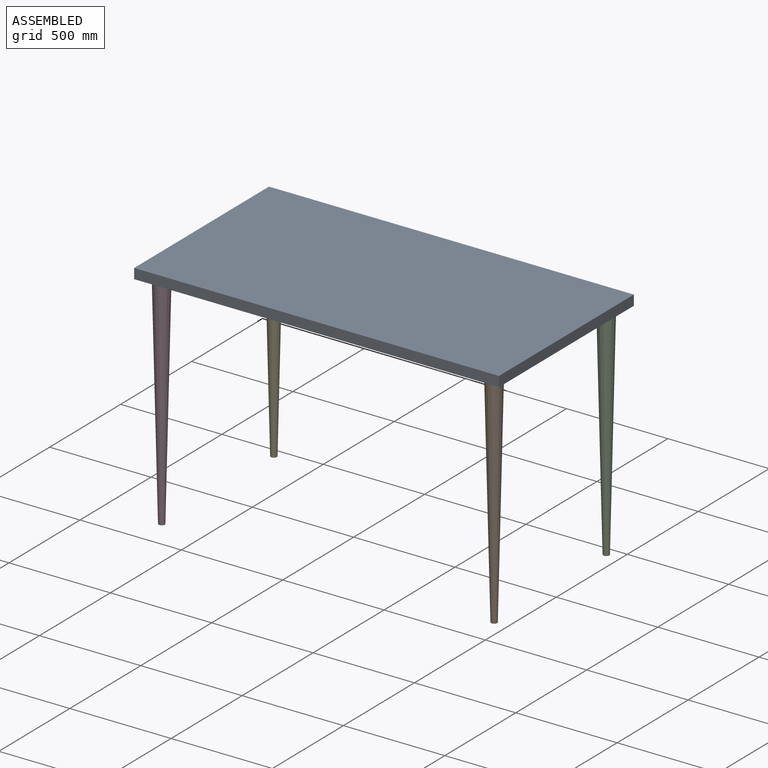
[diagram: assembled view]
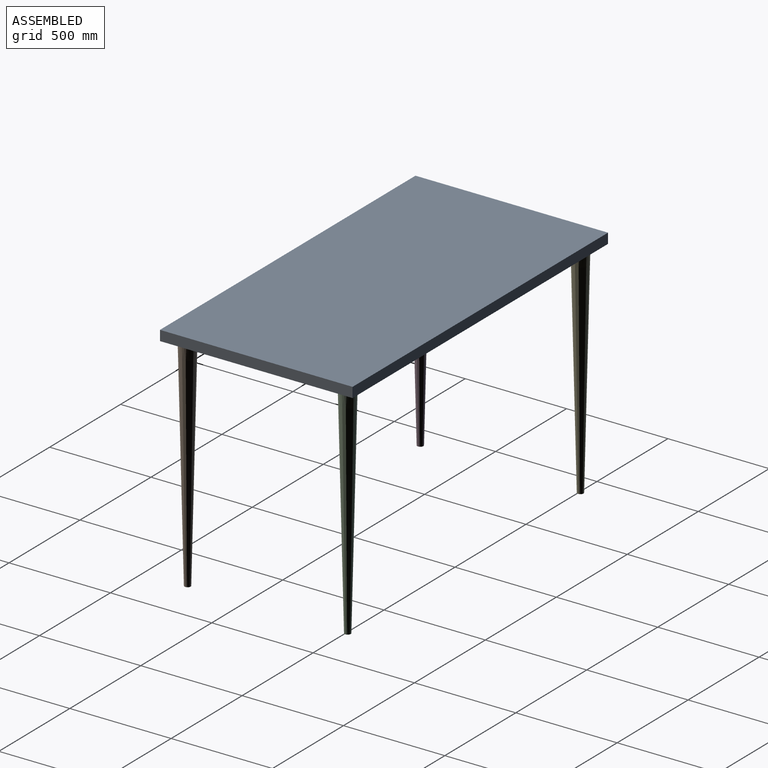
[diagram: assembled view, second angle]
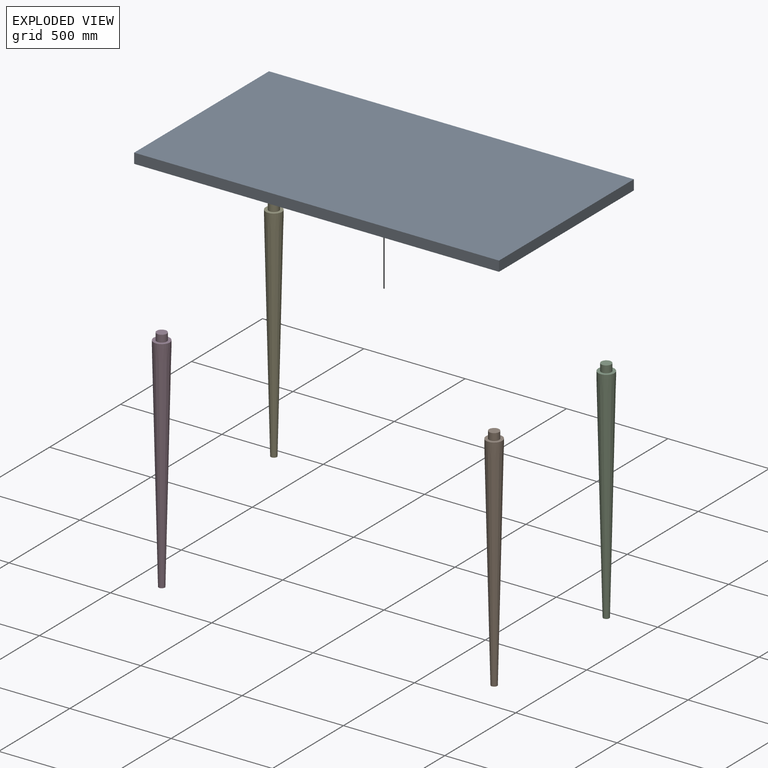
[diagram: exploded view]
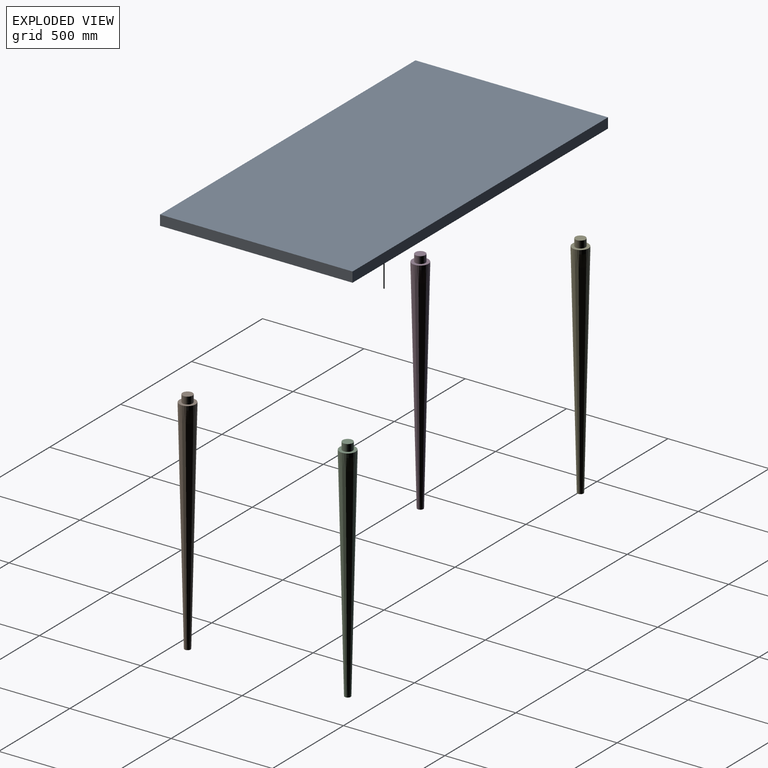
[diagram: exploded view, second angle]
ASSEMBLY  parts=5 mates=4
PART A: 14 faces, bbox 1800x950x50 mm
  f0: plane 1800x950mm, normal (0,0,-1), area 1702146mm2, adj f1,f2,f3,f4,f6,f8,f10,f12
  f1: plane 1800x50mm, normal (0,-1,0), area 90000mm2, adj f0,f2,f4,f5
  f2: plane 950x50mm, normal (1,0,0), area 47500mm2, adj f0,f1,f3,f5
  f3: plane 1800x50mm, normal (0,1,0), area 90000mm2, adj f0,f2,f4,f5
  f4: plane 950x50mm, normal (-1,0,0), area 47500mm2, adj f0,f1,f3,f5
  f5: plane 1800x950mm, normal (0,0,1), area 1710000mm2, adj f1,f2,f3,f4
  f6: cylinder r=25mm len=50mm, axis (0,0,-1), area 5497.8mm2, adj f0,f7
  f7: plane 50x50mm, normal (0,0,-1), area 1963.5mm2, adj f6
  f8: cylinder r=25mm len=50mm, axis (0,0,-1), area 5497.8mm2, adj f0,f9
  f9: plane 50x50mm, normal (0,0,-1), area 1963.5mm2, adj f8
  f10: cylinder r=25mm len=50mm, axis (0,0,-1), area 5497.8mm2, adj f0,f11
  f11: plane 50x50mm, normal (0,0,-1), area 1963.5mm2, adj f10
  f12: cylinder r=25mm len=50mm, axis (0,0,-1), area 5497.8mm2, adj f0,f13
  f13: plane 50x50mm, normal (0,0,-1), area 1963.5mm2, adj f12
PART B: 6 faces, bbox 80x80x1135 mm
  f0: cylinder r=40mm len=80mm, axis (0,0,1), area 5026.5mm2, adj f1,f5
  f1: plane 80x80mm, normal (0,0,1), area 3063.1mm2, adj f0,f2
  f2: cylinder r=25mm len=50mm, axis (0,0,1), area 5497.8mm2, adj f1,f3
  f3: plane 50x50mm, normal (0,0,1), area 1963.5mm2, adj f2
  f4: plane 30x30mm, normal (0,0,-1), area 706.9mm2, adj f5
  f5: cone r=15mm half-angle=1.3deg, axis (0,0,1), area 186660.6mm2, adj f0,f4
PART C: same geometry as B
PART D: same geometry as B
PART E: same geometry as B
PLACE A at identity fixed
PLACE B t=(1640,0,0)mm
PLACE C t=(1640,790,0)mm
PLACE D at identity
PLACE E t=(0,790,0)mm
MATE revolute A.f10 <-> E.f0  axis (0,0,-1) through (-820,395,1100)mm
MATE revolute A.f6 <-> D.f0  axis (0,0,-1) through (-820,-395,1100)mm
MATE revolute A.f8 <-> C.f0  axis (0,0,-1) through (820,395,1100)mm
MATE revolute A.f12 <-> B.f0  axis (0,0,-1) through (820,-395,1100)mm
